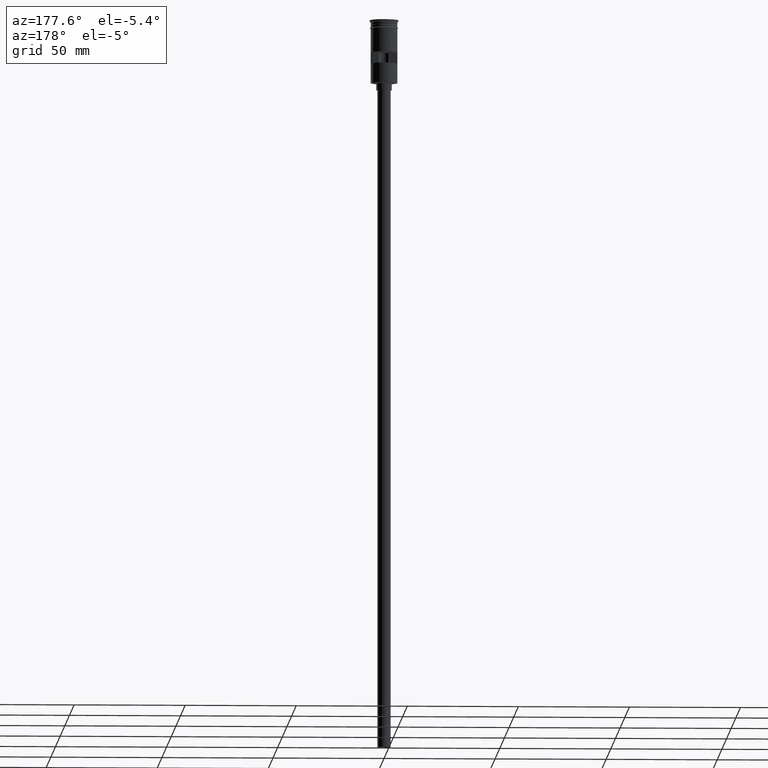
[diagram: clean part render]
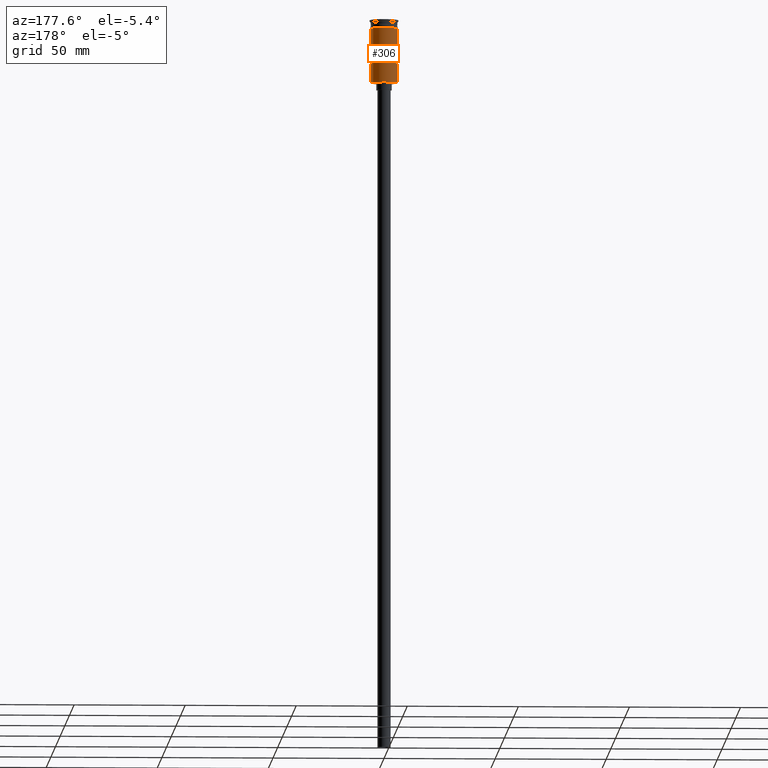
[diagram: same view with one face highlighted and labeled with its STEP entity id]
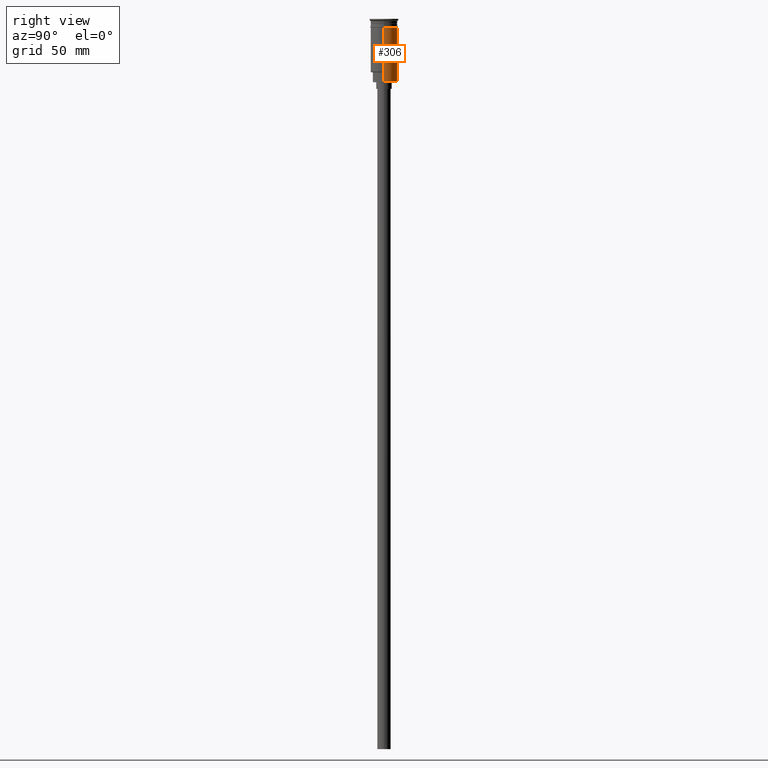
[diagram: same view with one face highlighted and labeled with its STEP entity id]
A machine part, auxiliary view. The second image highlights one B-rep face of the part: STEP entity #306.
A second angle (right view) of the same face is appended — the face is thin or edge-on in the first view.
In plain terms, the highlighted cylindrical surface (edge-blend (fillet) strip) has radius 6 mm, axis along (-0, -0, 1).
Its self-contained STEP definition (entity closure, byte-faithful):
#6 = CARTESIAN_POINT ( 'NONE',  ( 5.969924622639716461, 0.5999999999999997558, 0.000000000000000000 ) ) ;
#35 = ORIENTED_EDGE ( 'NONE', *, *, #520, .T. ) ;
#39 = CYLINDRICAL_SURFACE ( 'NONE', #1354, 5.999999999999997335 ) ;
#47 = LINE ( 'NONE', #649, #688 ) ;
#96 = EDGE_CURVE ( 'NONE', #555, #1577, #950, .T. ) ;
#114 = EDGE_CURVE ( 'NONE', #227, #1182, #1008, .T. ) ;
#148 = DIRECTION ( 'NONE',  ( -0.000000000000000000, -0.000000000000000000, 1.000000000000000000 ) ) ;
#180 = DIRECTION ( 'NONE',  ( -0.000000000000000000, -0.000000000000000000, 1.000000000000000000 ) ) ;
#227 = VERTEX_POINT ( 'NONE', #1487 ) ;
#228 = EDGE_CURVE ( 'NONE', #280, #975, #239, .T. ) ;
#239 = CIRCLE ( 'NONE', #1014, 6.000000000000000000 ) ;
#248 = CARTESIAN_POINT ( 'NONE',  ( 0.000000000000000000, 0.000000000000000000, -19.50000000000000355 ) ) ;
#280 = VERTEX_POINT ( 'NONE', #807 ) ;
#306 = ADVANCED_FACE ( 'NONE', ( #1530, #447 ), #39, .T. ) ;
#315 = VERTEX_POINT ( 'NONE', #535 ) ;
#334 = ORIENTED_EDGE ( 'NONE', *, *, #1322, .F. ) ;
#366 = DIRECTION ( 'NONE',  ( -0.000000000000000000, -0.000000000000000000, 1.000000000000000000 ) ) ;
#398 = AXIS2_PLACEMENT_3D ( 'NONE', #732, #1241, #627 ) ;
#405 = VECTOR ( 'NONE', #366, 1000.000000000000000 ) ;
#439 = CARTESIAN_POINT ( 'NONE',  ( -5.999999999999994671, 0.000000000000000000, -23.79999999999995453 ) ) ;
#447 = FACE_OUTER_BOUND ( 'NONE', #889, .T. ) ;
#452 = ORIENTED_EDGE ( 'NONE', *, *, #228, .F. ) ;
#458 = EDGE_CURVE ( 'NONE', #1398, #280, #1495, .T. ) ;
#483 = LINE ( 'NONE', #1237, #405 ) ;
#501 = DIRECTION ( 'NONE',  ( -1.000000000000000000, 0.000000000000000000, 0.000000000000000000 ) ) ;
#516 = CARTESIAN_POINT ( 'NONE',  ( 0.000000000000000000, 0.000000000000000000, -3.799999999999998490 ) ) ;
#520 = EDGE_CURVE ( 'NONE', #315, #555, #685, .T. ) ;
#535 = CARTESIAN_POINT ( 'NONE',  ( 5.999999999999994671, 7.347880794884112834E-16, -28.29999999999999716 ) ) ;
#536 = CARTESIAN_POINT ( 'NONE',  ( -6.000000000000000000, 7.347880794884119736E-16, -3.799999999999998490 ) ) ;
#549 = VECTOR ( 'NONE', #1092, 1000.000000000000000 ) ;
#555 = VERTEX_POINT ( 'NONE', #1286 ) ;
#556 = AXIS2_PLACEMENT_3D ( 'NONE', #722, #740, #1216 ) ;
#598 = CARTESIAN_POINT ( 'NONE',  ( -5.999999999999994671, 0.000000000000000000, -28.50000000000000000 ) ) ;
#601 = CARTESIAN_POINT ( 'NONE',  ( 5.999999999999997335, 0.000000000000000000, 0.000000000000000000 ) ) ;
#606 = DIRECTION ( 'NONE',  ( 0.000000000000000000, 0.000000000000000000, -1.000000000000000000 ) ) ;
#627 = DIRECTION ( 'NONE',  ( -1.000000000000000000, 0.000000000000000000, 0.000000000000000000 ) ) ;
#647 = DIRECTION ( 'NONE',  ( 1.000000000000000000, 0.000000000000000000, 0.000000000000000000 ) ) ;
#648 = VERTEX_POINT ( 'NONE', #1548 ) ;
#649 = CARTESIAN_POINT ( 'NONE',  ( 5.999999999999994671, 7.347880794884112834E-16, -28.50000000000000000 ) ) ;
#657 = DIRECTION ( 'NONE',  ( -0.000000000000000000, -0.000000000000000000, 1.000000000000000000 ) ) ;
#685 = CIRCLE ( 'NONE', #398, 5.999999999999997335 ) ;
#688 = VECTOR ( 'NONE', #657, 1000.000000000000000 ) ;
#722 = CARTESIAN_POINT ( 'NONE',  ( 0.000000000000000000, 0.000000000000000000, -14.49999999999999822 ) ) ;
#732 = CARTESIAN_POINT ( 'NONE',  ( 0.000000000000000000, 0.000000000000000000, -28.29999999999999716 ) ) ;
#740 = DIRECTION ( 'NONE',  ( -0.000000000000000000, -3.212450881438533227E-16, -1.000000000000000000 ) ) ;
#746 = DIRECTION ( 'NONE',  ( 0.000000000000000000, 0.000000000000000000, 1.000000000000000000 ) ) ;
#754 = DIRECTION ( 'NONE',  ( -0.000000000000000000, -0.000000000000000000, 1.000000000000000000 ) ) ;
#768 = CARTESIAN_POINT ( 'NONE',  ( -5.969924622639716461, 0.5999999999999997558, 0.000000000000000000 ) ) ;
#772 = ORIENTED_EDGE ( 'NONE', *, *, #458, .F. ) ;
#807 = CARTESIAN_POINT ( 'NONE',  ( 6.000000000000000000, 0.000000000000000000, -3.799999999999998490 ) ) ;
#839 = LINE ( 'NONE', #6, #1100 ) ;
#844 = EDGE_CURVE ( 'NONE', #1182, #1520, #1145, .T. ) ;
#889 = EDGE_LOOP ( 'NONE', ( #1127, #1581, #452, #772, #1433, #35 ) ) ;
#950 = LINE ( 'NONE', #598, #549 ) ;
#975 = VERTEX_POINT ( 'NONE', #536 ) ;
#995 = EDGE_CURVE ( 'NONE', #315, #1398, #47, .T. ) ;
#1008 = LINE ( 'NONE', #768, #1352 ) ;
#1014 = AXIS2_PLACEMENT_3D ( 'NONE', #516, #148, #647 ) ;
#1056 = CARTESIAN_POINT ( 'NONE',  ( 0.000000000000000000, 0.000000000000000000, 0.000000000000000000 ) ) ;
#1092 = DIRECTION ( 'NONE',  ( -0.000000000000000000, -0.000000000000000000, 1.000000000000000000 ) ) ;
#1098 = DIRECTION ( 'NONE',  ( -0.000000000000000000, -0.000000000000000000, 1.000000000000000000 ) ) ;
#1100 = VECTOR ( 'NONE', #606, 1000.000000000000000 ) ;
#1127 = ORIENTED_EDGE ( 'NONE', *, *, #96, .T. ) ;
#1145 = CIRCLE ( 'NONE', #556, 5.999999999999997335 ) ;
#1149 = AXIS2_PLACEMENT_3D ( 'NONE', #248, #746, #501 ) ;
#1178 = ORIENTED_EDGE ( 'NONE', *, *, #1264, .F. ) ;
#1182 = VERTEX_POINT ( 'NONE', #1448 ) ;
#1216 = DIRECTION ( 'NONE',  ( 0.000000000000000000, -1.000000000000000000, 2.891205793294679805E-16 ) ) ;
#1237 = CARTESIAN_POINT ( 'NONE',  ( -5.999999999999997335, 7.347880794884116778E-16, 0.000000000000000000 ) ) ;
#1241 = DIRECTION ( 'NONE',  ( 0.000000000000000000, 0.000000000000000000, 1.000000000000000000 ) ) ;
#1264 = EDGE_CURVE ( 'NONE', #1520, #648, #839, .T. ) ;
#1270 = ORIENTED_EDGE ( 'NONE', *, *, #114, .F. ) ;
#1286 = CARTESIAN_POINT ( 'NONE',  ( -5.999999999999994671, 0.000000000000000000, -28.29999999999999716 ) ) ;
#1322 = EDGE_CURVE ( 'NONE', #648, #227, #1361, .T. ) ;
#1343 = EDGE_CURVE ( 'NONE', #1577, #975, #483, .T. ) ;
#1352 = VECTOR ( 'NONE', #754, 1000.000000000000000 ) ;
#1354 = AXIS2_PLACEMENT_3D ( 'NONE', #1056, #180, #1416 ) ;
#1361 = CIRCLE ( 'NONE', #1149, 5.999999999999997335 ) ;
#1386 = VECTOR ( 'NONE', #1098, 1000.000000000000000 ) ;
#1398 = VERTEX_POINT ( 'NONE', #1522 ) ;
#1416 = DIRECTION ( 'NONE',  ( 1.000000000000000000, 0.000000000000000000, 0.000000000000000000 ) ) ;
#1433 = ORIENTED_EDGE ( 'NONE', *, *, #995, .F. ) ;
#1437 = CARTESIAN_POINT ( 'NONE',  ( 5.969924622639712908, 0.5999999999999999778, -14.49999999999999822 ) ) ;
#1448 = CARTESIAN_POINT ( 'NONE',  ( -5.969924622639716461, 0.5999999999999999778, -14.49999999999999822 ) ) ;
#1471 = ORIENTED_EDGE ( 'NONE', *, *, #844, .F. ) ;
#1480 = EDGE_LOOP ( 'NONE', ( #1178, #1471, #1270, #334 ) ) ;
#1487 = CARTESIAN_POINT ( 'NONE',  ( -5.969924622639716461, 0.5999999999999997558, -19.50000000000000355 ) ) ;
#1495 = LINE ( 'NONE', #601, #1386 ) ;
#1520 = VERTEX_POINT ( 'NONE', #1437 ) ;
#1522 = CARTESIAN_POINT ( 'NONE',  ( 5.999999999999997335, 7.347880794884115792E-16, -23.79999999999995453 ) ) ;
#1530 = FACE_BOUND ( 'NONE', #1480, .T. ) ;
#1548 = CARTESIAN_POINT ( 'NONE',  ( 5.969924622639712908, 0.5999999999999999778, -19.50000000000000355 ) ) ;
#1577 = VERTEX_POINT ( 'NONE', #439 ) ;
#1581 = ORIENTED_EDGE ( 'NONE', *, *, #1343, .T. ) ;